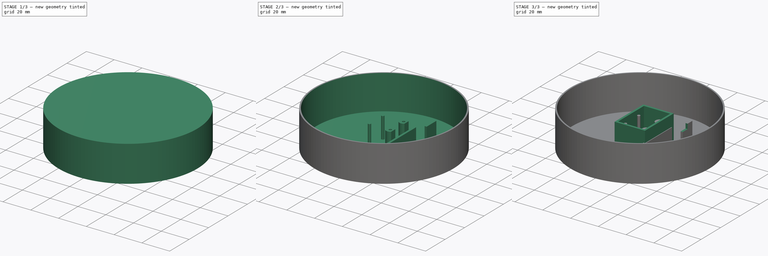
[diagram: build sequence overview — one tinted view per stage of 3, left to right]
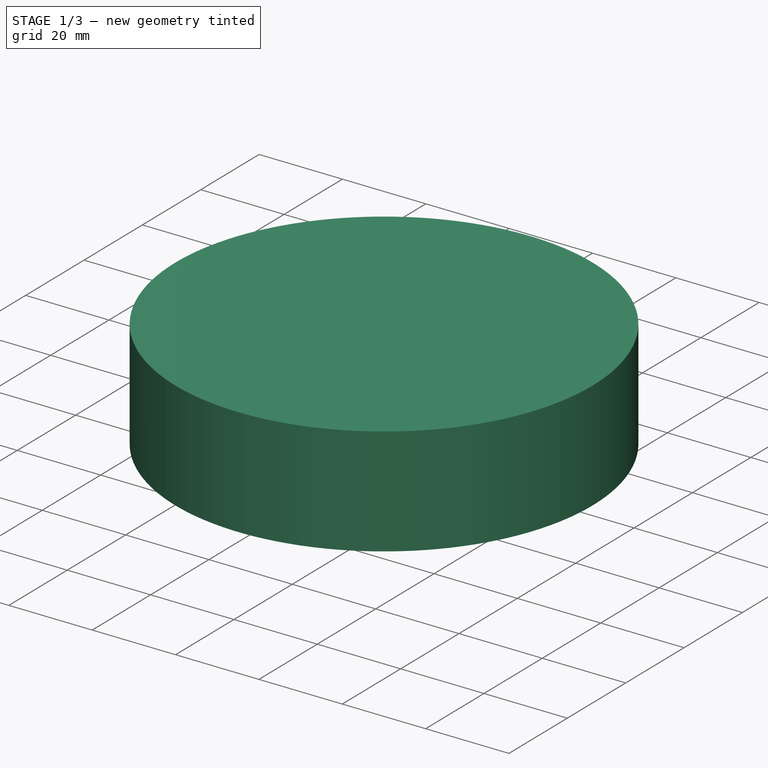
[diagram: stage 1 of 3 — iso view after this stage's code; geometry added in this stage tinted green]
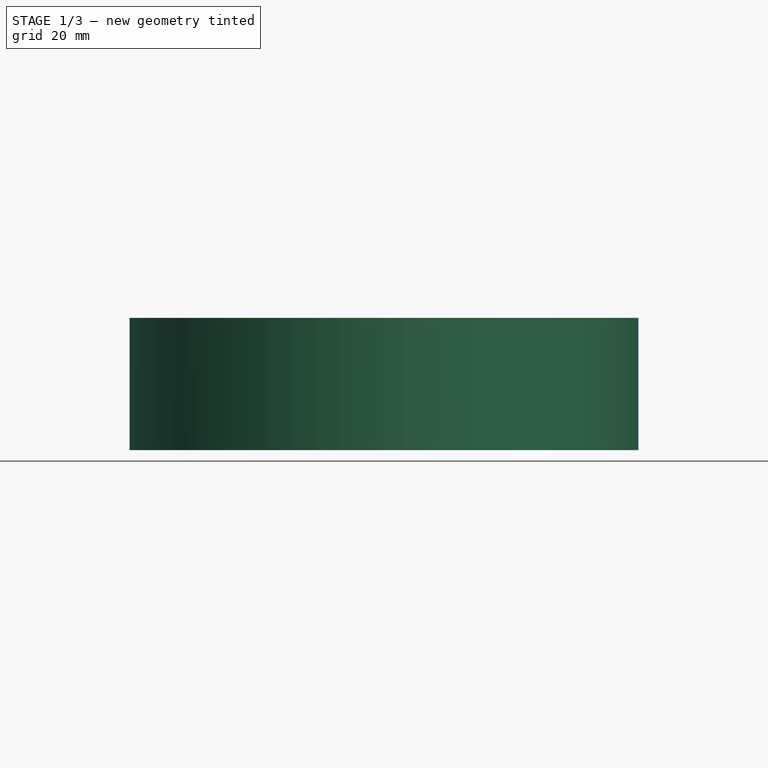
[diagram: stage 1 of 3 — front view after this stage's code; geometry added in this stage tinted green]
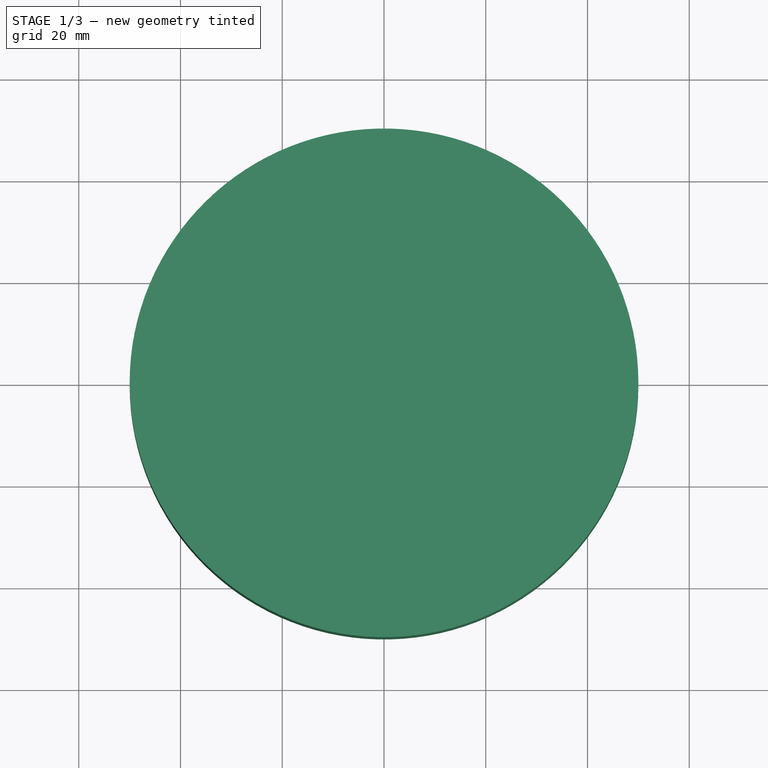
[diagram: stage 1 of 3 — top view after this stage's code; geometry added in this stage tinted green]
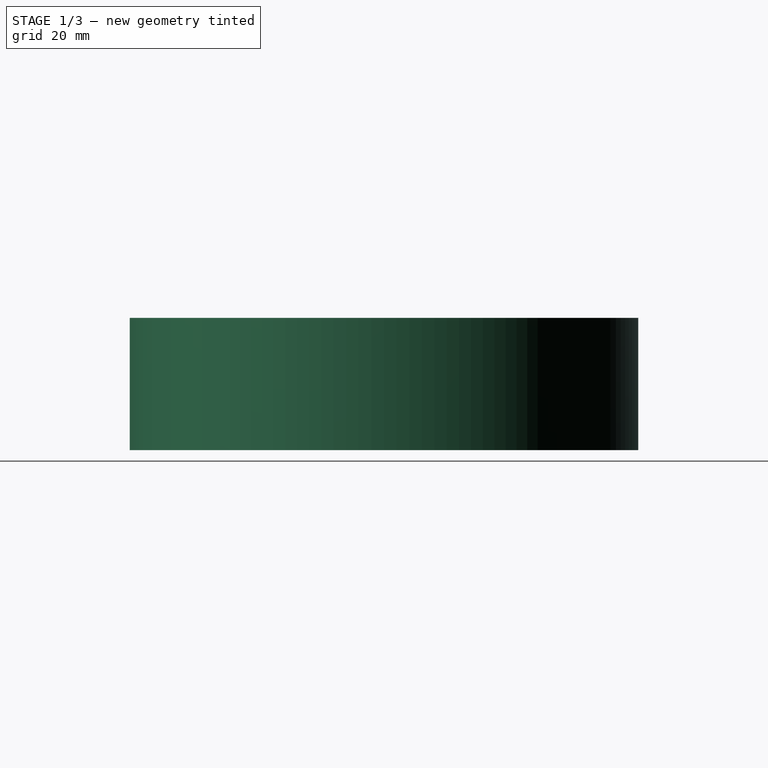
[diagram: stage 1 of 3 — right view after this stage's code; geometry added in this stage tinted green]
FCSTD DOCUMENT  (FreeCAD 0.19R24291 (Git))
Label: assembly
License: All rights reserved
LicenseURL: http://en.wikipedia.org/wiki/All_rights_reserved
objects: Sketcher::SketchObject×5, PartDesign::Pad×4, App::Link×4, PartDesign::CoordinateSystem×2, App::DocumentObjectGroup×2, App::Part×2, App::FeaturePython×1, PartDesign::AdditiveCylinder×1, PartDesign::SubtractiveCylinder×1, PartDesign::Plane×1, PartDesign::Pocket×1, PartDesign::Body×1
note: 23 computed .brp shape members not serialized (recipe doc carries the construction recipe); baked Part::Feature solids carry a one-line shape summary decoded from their .brp
EXTERNAL_REF file=rotary-encoder-ky-040.FCStd obj=LCS_0
EXTERNAL_REF file=rotary-encoder-ky-040.FCStd obj=rotary_encoder_ky_040
EXTERNAL_REF file=esp32-devkitc-v4.FCStd obj=LCS_0
EXTERNAL_REF file=esp32-devkitc-v4.FCStd obj=esp32_devkitc_v4_part
EXTERNAL_REF file=battery-charger-assembly.FCStd obj=LCS_Origin
EXTERNAL_REF file=battery-charger-assembly.FCStd obj=Model

FEATURE [PartDesign::CoordinateSystem] LCS_Origin
  AttacherType = Attacher::AttachEngine3D
  MapMode = 2
  Support = -> [X_Axis]
FEATURE [App::DocumentObjectGroup] Constraints
FEATURE [App::FeaturePython] Variables  # WARN: FeaturePython — macro-defined, semantics opaque (R4)
FEATURE [PartDesign::CoordinateSystem] LCS_0
  AttacherType = Attacher::AttachEngine3D
  MapMode = 2
  Support = -> [X_Axis001]
FEATURE [Sketcher::SketchObject] Sketch  label="sk_base"
  FullyConstrained = true
  MapMode = 5
  Support = -> [XY_Plane002]
  sketch-geometry (1):
    g0: Circle CenterX=0 CenterY=0 CenterZ=0 NormalX=0 NormalY=0 NormalZ=1 AngleXU=0 Radius=50
  constraints (2):
    c: Coincident(g0,g-1)
    c: Diameter(g0) = 100  'diameter'
FEATURE [PartDesign::Pad] Pad  label="pad_base"
  Direction = (1,1,1)
  Length = 1
  Length2 = 100
  Profile = -> Sketch
  Reversed = true
  Type = 0
FEATURE [App::Link] case_1_part001
  AssemblyType = Asm4EE
  AttachedBy = #LCS_0
  AttachedTo = Parent Assembly#LCS_Origin
  LinkedObject = -> case_1_part
  expr: Placement = LCS_Origin.Placement * AttachmentOffset * LCS_0.Placement ^ -1
FEATURE [App::Link] Unnamed1_rotary_encoder_ky_040_part  label="rotary_encoder"
  AssemblyType = Asm4EE
  AttachedBy = #LCS_0
  AttachedTo = case_1_part001#LCS_0
  AttachmentOffset = pos=(0,0,21) rot=(0,0,1;0rad)
  LinkPlacement = pos=(0,0,21) rot=(0,0,1;0rad)
  LinkedObject = -> <external rotary-encoder-ky-040.FCStd>#rotary_encoder_ky_040
  Placement = pos=(0,0,21) rot=(0,0,1;0rad)
  expr: Placement = case_1_part001.Placement * LCS_0.Placement * AttachmentOffset * rotary_encoder_ky_040#LCS_0.Placement ^ -1
FEATURE [App::Link] Unnamed_esp32_devkitc_v4_part  label="esp32"
  AssemblyType = Asm4EE
  AttachedBy = #LCS_0
  AttachedTo = case_1_part001#LCS_0
  AttachmentOffset = pos=(14,23,4) rot=(0,0,1;0rad)
  LinkPlacement = pos=(14,23,4) rot=(0,0,1;0rad)
  LinkedObject = -> <external esp32-devkitc-v4.FCStd>#esp32_devkitc_v4_part
  Placement = pos=(14,23,4) rot=(0,0,1;0rad)
  expr: Placement = case_1_part001.Placement * LCS_0.Placement * AttachmentOffset * esp32_devkitc_v4#LCS_0.Placement ^ -1
FEATURE [PartDesign::AdditiveCylinder] Cylinder  label="wall_add_cylinder"
  Angle = 360
  AttacherType = Attacher::AttachEngine3D
  BaseFeature = -> Pad
  Height = 25
  MapMode = 5
  Radius = 50
  Support = -> [XY_Plane002]
  expr: Radius = <<sk_base>>.Constraints.diameter / 2
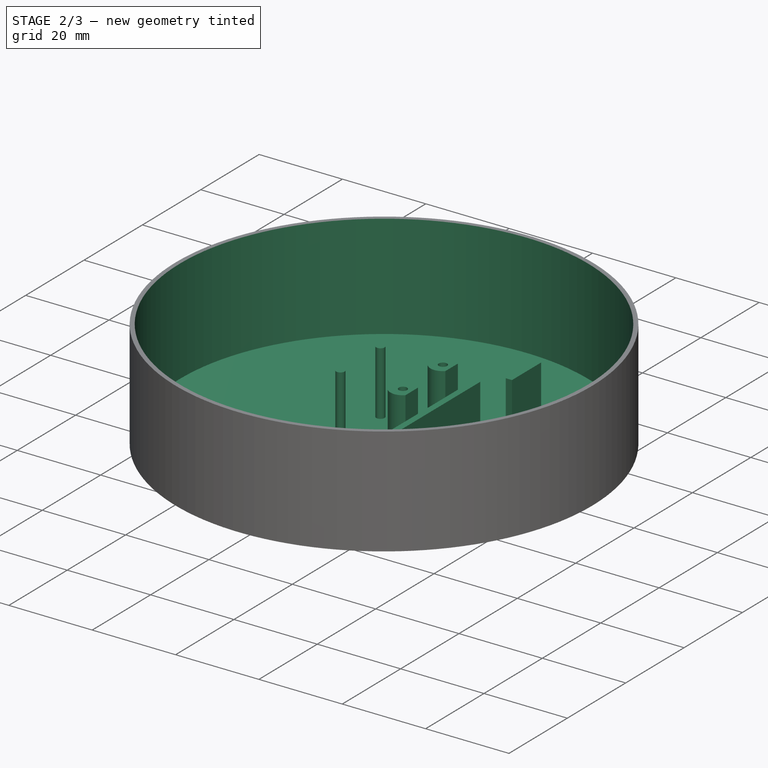
[diagram: stage 2 of 3 — iso view after this stage's code; geometry added in this stage tinted green]
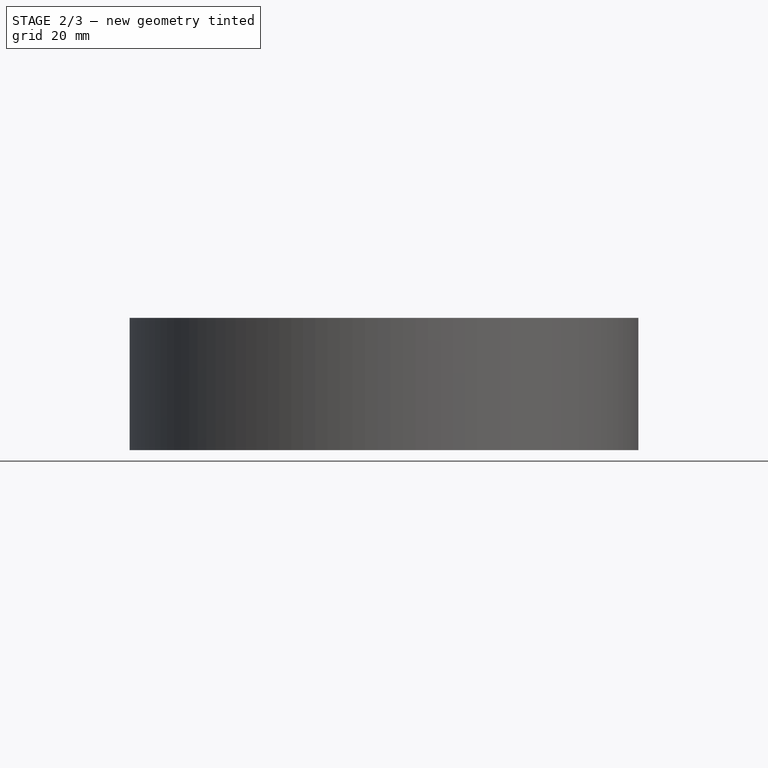
[diagram: stage 2 of 3 — front view after this stage's code; geometry added in this stage tinted green]
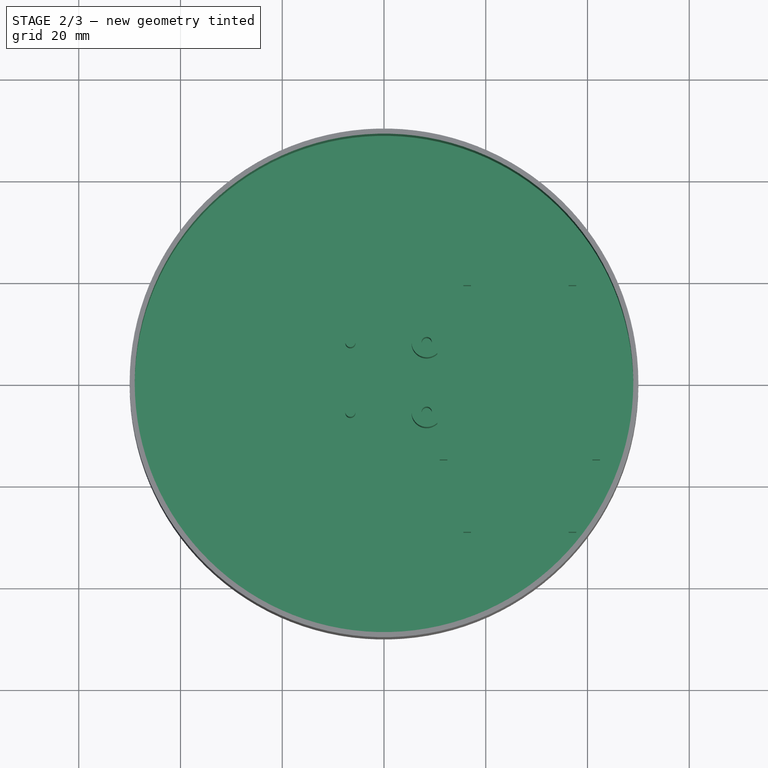
[diagram: stage 2 of 3 — top view after this stage's code; geometry added in this stage tinted green]
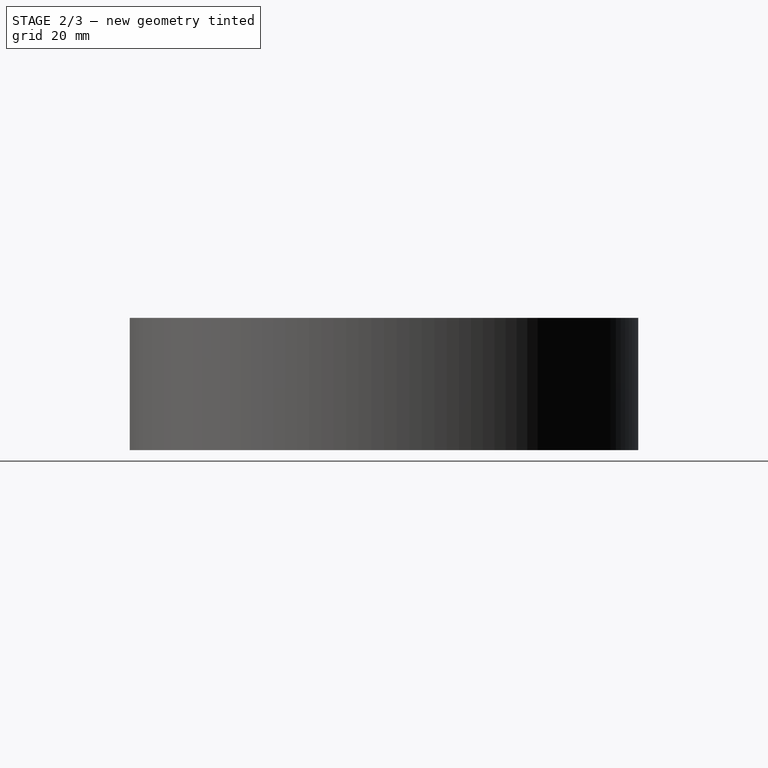
[diagram: stage 2 of 3 — right view after this stage's code; geometry added in this stage tinted green]
FEATURE [PartDesign::SubtractiveCylinder] Cylinder001  label="wall_sub_cylinder"
  Angle = 360
  AttacherType = Attacher::AttachEngine3D
  BaseFeature = -> Cylinder
  Height = 25
  MapMode = 5
  Radius = 49
  Support = -> [XY_Plane002]
  expr: Radius = <<sk_base>>.Constraints.diameter / 2 - <<pad_base>>.Length
  expr: Height = <<wall_add_cylinder>>.Height
FEATURE [Sketcher::SketchObject] Sketch001  label="sk_board_holder_rot_enc"
  FullyConstrained = true
  MapMode = 5
  Support = -> [XY_Plane002]
  expr: Constraints[17] = <<sk_rot_encoder_housing>>.Constraints.x_right_wall_offset
  expr: Constraints[9] = .Constraints.hole_diameter + 2mm * 2
  sketch-geometry (9):
    g0: Circle CenterX=8.4 CenterY=8.2 CenterZ=0 NormalX=0 NormalY=0 NormalZ=1 AngleXU=0 Radius=1
    g1: Circle CenterX=8.4 CenterY=-5.5 CenterZ=0 NormalX=0 NormalY=0 NormalZ=1 AngleXU=0 Radius=1
    g2: ArcOfCircle CenterX=8.4 CenterY=8.2 CenterZ=0 NormalX=0 NormalY=0 NormalZ=1 AngleXU=0 Radius=3 StartAngle=0.795399 EndAngle=5.48779
    g3: ArcOfCircle CenterX=8.4 CenterY=-5.5 CenterZ=0 NormalX=0 NormalY=0 NormalZ=1 AngleXU=0 Radius=3 StartAngle=0.795399 EndAngle=5.48779
    g4: Circle CenterX=-6.6 CenterY=8.2 CenterZ=0 NormalX=0 NormalY=0 NormalZ=1 AngleXU=0 Radius=1
    g5: Circle CenterX=-6.6 CenterY=-5.5 CenterZ=0 NormalX=0 NormalY=0 NormalZ=1 AngleXU=0 Radius=1
    g6: LineSegment StartX=10.5 StartY=12.5 StartZ=0 EndX=10.5 EndY=-12.5 EndZ=0
    g7: LineSegment StartX=10.5 StartY=10.3424 StartZ=0 EndX=10.5 EndY=6.05757 EndZ=0
    g8: LineSegment StartX=10.5 StartY=-3.35757 StartZ=0 EndX=10.5 EndY=-7.64243 EndZ=0
  constraints (31):
    c: Equal(g0,g1)
    c: Vertical(g1,g0)
    c: Diameter(g0) = 2  'hole_diameter'
    c: Coincident(g2,g0)
    c: Coincident(g3,g1)
    c: DistanceY(g-1,g0) = 8.2
    c: DistanceX(g-1,g0) = 8.4
    c: DistanceY(g1,g-1) = 5.5
    c: Equal(g3,g2)
    c: Diameter(g2) = 6
    c: Vertical(g5,g4)
    c: Horizontal(g4,g0)
    c: Horizontal(g5,g1)
    c: DistanceX(g4,g0) = 15
    c: Diameter(g5) = 2
    c: Equal(g5,g4)
    c: Distance(g6) = 25
    c: DistanceX(g-1,g6) = 10.5
    c: Symmetric(g6,g6,g-1)
    c: Vertical(g7)
    c: PointOnObject(g8,g6)
    c: PointOnObject(g8,g3)
    c: PointOnObject(g8,g6)
    c: PointOnObject(g8,g3)
    c: PointOnObject(g7,g6)
    c: PointOnObject(g7,g2)
    c: PointOnObject(g7,g2)
    c: PointOnObject(g2,g6)
    c: PointOnObject(g2,g6)
    c: PointOnObject(g3,g6)
    c: PointOnObject(g3,g6)
FEATURE [PartDesign::Pad] Pad001  label="pad_board_holder_rot_enc"
  BaseFeature = -> Cylinder001
  Direction = (1,1,1)
  Length = 15.3
  Length2 = 100
  Profile = -> Sketch001
  Type = 0
FEATURE [Sketcher::SketchObject] Sketch002  label="sk_board_holder_esp"
  FullyConstrained = true
  MapMode = 5
  Support = -> [XY_Plane002]
  sketch-geometry (27):
    g0: LineSegment StartX=15.6 StartY=29.4433 StartZ=0 EndX=17.1 EndY=29.4433 EndZ=0
    g1: LineSegment StartX=17.1 StartY=29.4433 StartZ=0 EndX=17.1 EndY=19.4433 EndZ=0
    g2: LineSegment StartX=17.1 StartY=19.4433 StartZ=0 EndX=15.6 EndY=19.4433 EndZ=0
    g3: LineSegment StartX=15.6 StartY=19.4433 StartZ=0 EndX=15.6 EndY=29.4433 EndZ=0
    g4: LineSegment StartX=36.3 StartY=29.4433 StartZ=0 EndX=37.8 EndY=29.4433 EndZ=0
    g5: LineSegment StartX=37.8 StartY=29.4433 StartZ=0 EndX=37.8 EndY=19.4433 EndZ=0
    g6: LineSegment StartX=37.8 StartY=19.4433 StartZ=0 EndX=36.3 EndY=19.4433 EndZ=0
    g7: LineSegment StartX=36.3 StartY=19.4433 StartZ=0 EndX=36.3 EndY=29.4433 EndZ=0
    g8: LineSegment StartX=15.6 StartY=-19.0433 StartZ=0 EndX=17.1 EndY=-19.0433 EndZ=0
    g9: LineSegment StartX=17.1 StartY=-19.0433 StartZ=0 EndX=17.1 EndY=-29.0433 EndZ=0
    g10: LineSegment StartX=17.1 StartY=-29.0433 StartZ=0 EndX=15.6 EndY=-29.0433 EndZ=0
    g11: LineSegment StartX=15.6 StartY=-29.0433 StartZ=0 EndX=15.6 EndY=-19.0433 EndZ=0
    g12: LineSegment StartX=36.3 StartY=-19.0433 StartZ=0 EndX=37.8 EndY=-19.0433 EndZ=0
    g13: LineSegment StartX=37.8 StartY=-19.0433 StartZ=0 EndX=37.8 EndY=-29.0433 EndZ=0
    g14: LineSegment StartX=37.8 StartY=-29.0433 StartZ=0 EndX=36.3 EndY=-29.0433 EndZ=0
    g15: LineSegment StartX=36.3 StartY=-29.0433 StartZ=0 EndX=36.3 EndY=-19.0433 EndZ=0
    g16: LineSegment StartX=26.7 StartY=33 StartZ=0 EndX=26.7 EndY=-32 EndZ=0
    g17: LineSegment StartX=0 StartY=0.2 StartZ=0 EndX=50 EndY=0.2 EndZ=0
    g18: LineSegment StartX=11.4882 StartY=-24.0433 StartZ=0 EndX=20.8154 EndY=-24.0433 EndZ=0
    g19: LineSegment StartX=40.95 StartY=15.2 StartZ=0 EndX=42.45 EndY=15.2 EndZ=0
    g20: LineSegment StartX=42.45 StartY=15.2 StartZ=0 EndX=42.45 EndY=-14.8 EndZ=0
    g21: LineSegment StartX=42.45 StartY=-14.8 StartZ=0 EndX=40.95 EndY=-14.8 EndZ=0
    g22: LineSegment StartX=40.95 StartY=-14.8 StartZ=0 EndX=40.95 EndY=15.2 EndZ=0
    g23: LineSegment StartX=10.95 StartY=15.2 StartZ=0 EndX=12.45 EndY=15.2 EndZ=0
    g24: LineSegment StartX=12.45 StartY=15.2 StartZ=0 EndX=12.45 EndY=-14.8 EndZ=0
    g25: LineSegment StartX=12.45 StartY=-14.8 StartZ=0 EndX=10.95 EndY=-14.8 EndZ=0
    g26: LineSegment StartX=10.95 StartY=-14.8 StartZ=0 EndX=10.95 EndY=15.2 EndZ=0
  constraints (77):
    c: Coincident(g0,g1)
    c: Coincident(g1,g2)
    c: Coincident(g2,g3)
    c: Coincident(g3,g0)
    c: Horizontal(g0)
    c: Horizontal(g2)
    c: Vertical(g1)
    c: Vertical(g3)
    c: Coincident(g4,g5)
    c: Coincident(g5,g6)
    c: Coincident(g6,g7)
    c: Coincident(g7,g4)
    c: Horizontal(g4)
    c: Horizontal(g6)
    c: Vertical(g5)
    c: Vertical(g7)
    c: Coincident(g8,g9)
    c: Coincident(g9,g10)
    c: Coincident(g10,g11)
    c: Coincident(g11,g8)
    c: Horizontal(g8)
    c: Horizontal(g10)
    c: Vertical(g9)
    c: Vertical(g11)
    c: Coincident(g12,g13)
    c: Coincident(g13,g14)
    c: Coincident(g14,g15)
    c: Coincident(g15,g12)
    c: Horizontal(g12)
    c: Horizontal(g14)
    c: Vertical(g13)
    c: Vertical(g15)
    c: Vertical(g16)
    c: Horizontal(g17)
    c: Symmetric(g1,g6,g16)
    c: Equal(g2,g8)
    c: Equal(g8,g12)
    c: Equal(g12,g6)
    c: Equal(g5,g1)
    c: Equal(g1,g9)
    c: Equal(g9,g13)
    c: Symmetric(g8,g12,g16)
    c: Symmetric(g6,g12,g17)
    c: PointOnObject(g17,g-2)
    c: DistanceY(g-1,g17) = 0.2
    c: Distance(g17) = 50
    c: Distance(g16) = 65
    c: DistanceX(g-1,g16) = 26.7
    c: Distance(g0) = 1.5
    c: Distance(g3) = 10
    c: DistanceX(g-1,g0) = 15.6
    c: DistanceY(g16,g-1) = 32
    c: Horizontal(g18)
    c: Block(g18)
    c: DistanceY(g18,g8) = 5
    c: Coincident(g19,g20)
    c: Coincident(g20,g21)
    c: Coincident(g21,g22)
    c: Coincident(g22,g19)
    c: Horizontal(g19)
    c: Horizontal(g21)
    c: Vertical(g20)
    c: Vertical(g22)
    c: Coincident(g23,g24)
    c: Coincident(g24,g25)
    c: Coincident(g25,g26)
    c: Coincident(g26,g23)
    c: Horizontal(g23)
    c: Horizontal(g25)
    c: Vertical(g24)
    c: Symmetric(g23,g19,g16)
    c: Equal(g19,g23)
    c: Equal(g23,g14)
    c: Equal(g20,g26)
    c: Symmetric(g25,g23,g17)
    c: Distance(g26) = 30
    c: DistanceX(g23,g19) = 28.5
FEATURE [PartDesign::Pad] Pad002  label="pad_board_holder_esp"
  BaseFeature = -> Pad001
  Direction = (1,1,1)
  Length = 10
  Length2 = 100
  Profile = -> Sketch002
  Type = 0
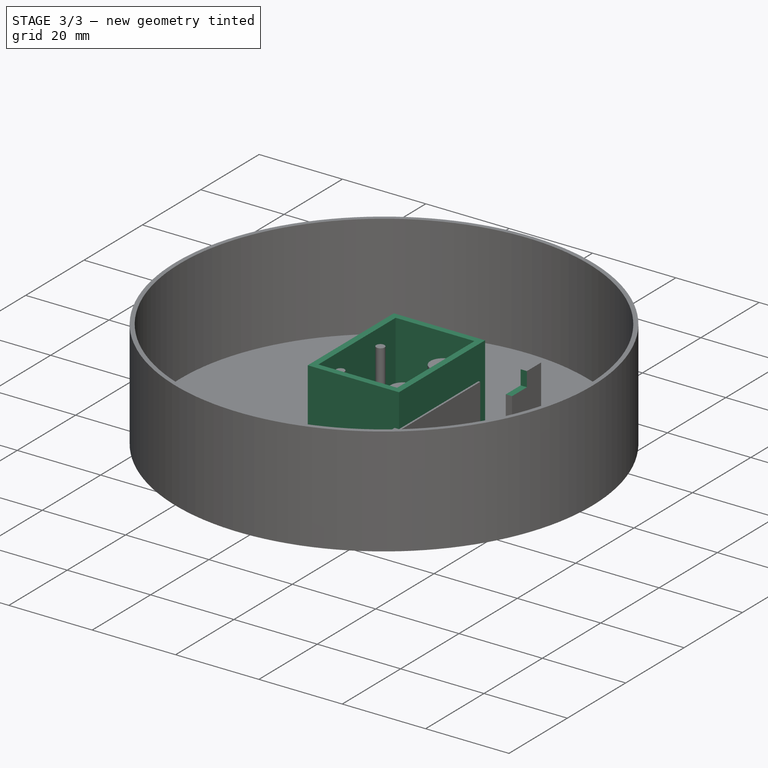
[diagram: stage 3 of 3 — iso view after this stage's code; geometry added in this stage tinted green]
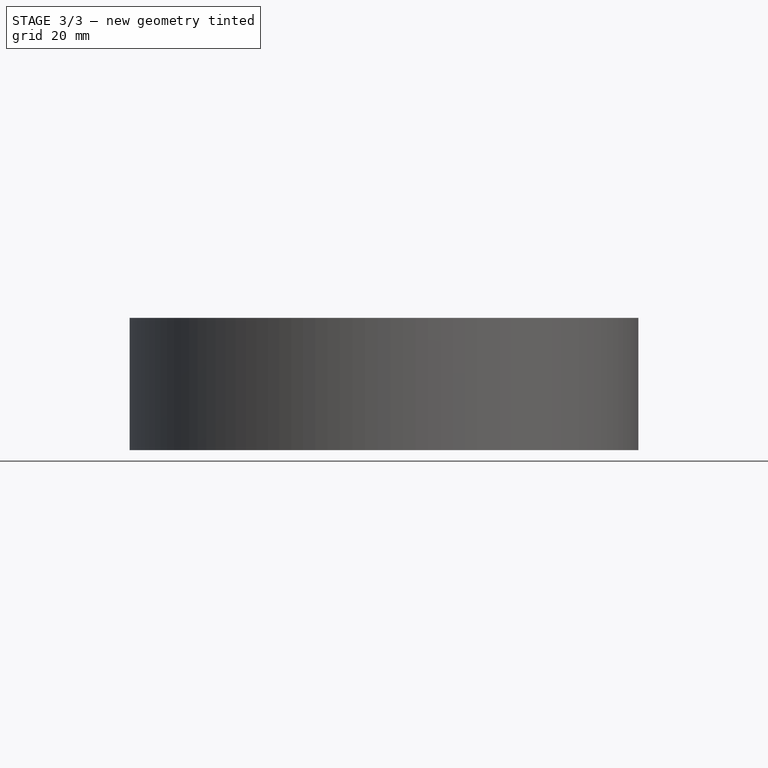
[diagram: stage 3 of 3 — front view after this stage's code; geometry added in this stage tinted green]
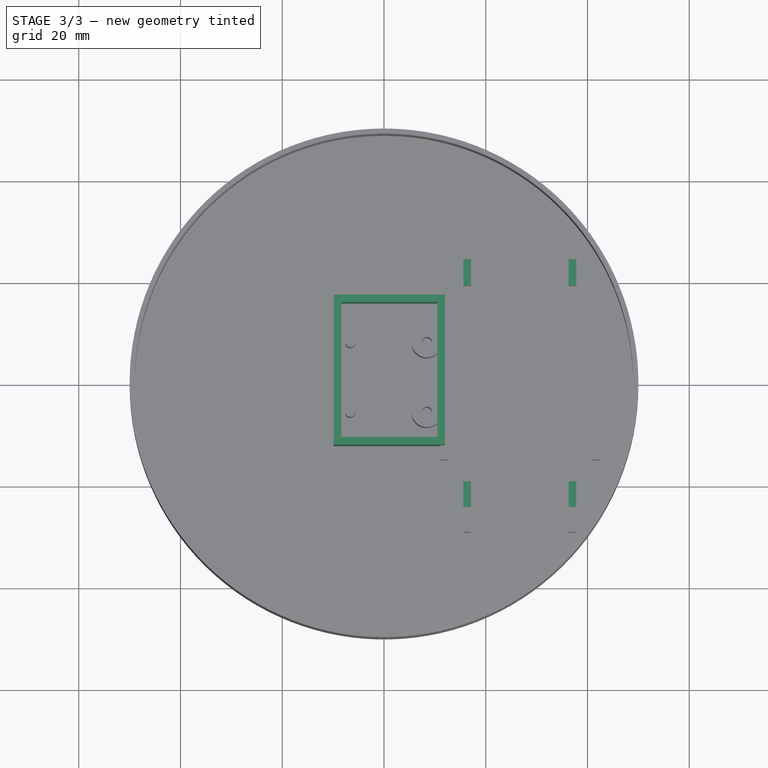
[diagram: stage 3 of 3 — top view after this stage's code; geometry added in this stage tinted green]
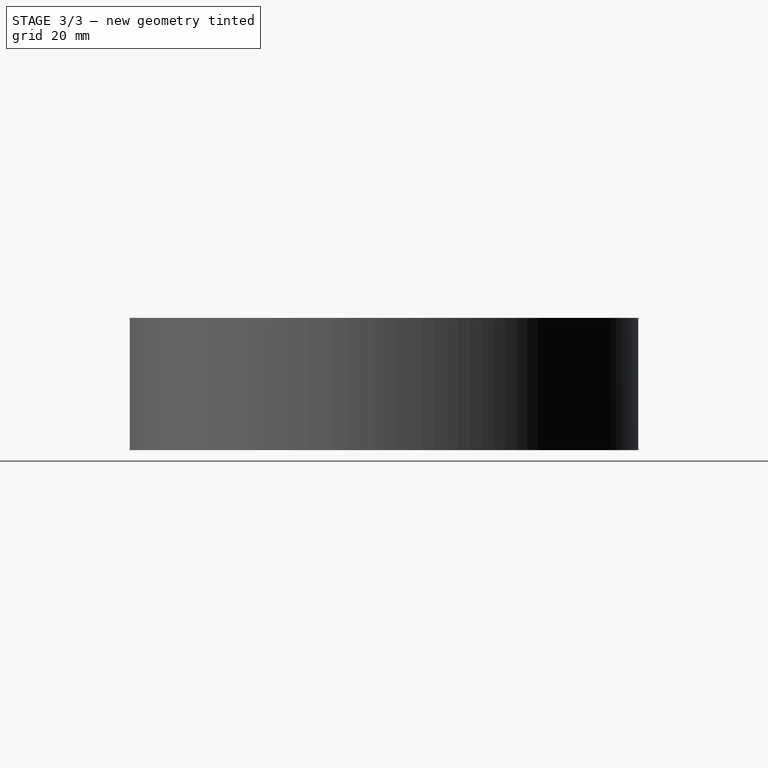
[diagram: stage 3 of 3 — right view after this stage's code; geometry added in this stage tinted green]
FEATURE [PartDesign::Plane] DatumPlane  label="dp_board_holder_esp_pocket"
  AttachmentOffset = pos=(0,0,6.5) rot=(0,0,1;0rad)
  Length = 119.793
  MapMode = 5
  Placement = pos=(0,0,6.5) rot=(0,0,1;0rad)
  ResizeMode = 0
  Support = -> [XY_Plane002]
  Width = 119.883
FEATURE [Sketcher::SketchObject] Sketch003  label="sk_board_holder_esp_pcoket"
  ExternalGeometry = -> [Sketch002]
  FullyConstrained = true
  MapMode = 5
  Placement = pos=(0,0,6.5) rot=(0,0,1;0rad)
  Support = -> [DatumPlane]
  sketch-geometry (16):
    g0: LineSegment StartX=15.6 StartY=-19.0433 StartZ=0 EndX=17.1 EndY=-19.0433 EndZ=0
    g1: LineSegment StartX=17.1 StartY=-19.0433 StartZ=0 EndX=17.1 EndY=-24.1433 EndZ=0
    g2: LineSegment StartX=17.1 StartY=-24.1433 StartZ=0 EndX=15.6 EndY=-24.1433 EndZ=0
    g3: LineSegment StartX=15.6 StartY=-24.1433 StartZ=0 EndX=15.6 EndY=-19.0433 EndZ=0
    g4: LineSegment StartX=36.3 StartY=-19.0433 StartZ=0 EndX=37.8 EndY=-19.0433 EndZ=0
    g5: LineSegment StartX=37.8 StartY=-19.0433 StartZ=0 EndX=37.8 EndY=-24.1433 EndZ=0
    g6: LineSegment StartX=37.8 StartY=-24.1433 StartZ=0 EndX=36.3 EndY=-24.1433 EndZ=0
    g7: LineSegment StartX=36.3 StartY=-24.1433 StartZ=0 EndX=36.3 EndY=-19.0433 EndZ=0
    g8: LineSegment StartX=15.6 StartY=19.4433 StartZ=0 EndX=17.1 EndY=19.4433 EndZ=0
    g9: LineSegment StartX=17.1 StartY=19.4433 StartZ=0 EndX=17.1 EndY=24.5433 EndZ=0
    g10: LineSegment StartX=17.1 StartY=24.5433 StartZ=0 EndX=15.6 EndY=24.5433 EndZ=0
    g11: LineSegment StartX=15.6 StartY=24.5433 StartZ=0 EndX=15.6 EndY=19.4433 EndZ=0
    g12: LineSegment StartX=36.3 StartY=19.4433 StartZ=0 EndX=37.8 EndY=19.4433 EndZ=0
    g13: LineSegment StartX=37.8 StartY=19.4433 StartZ=0 EndX=37.8 EndY=24.5433 EndZ=0
    g14: LineSegment StartX=37.8 StartY=24.5433 StartZ=0 EndX=36.3 EndY=24.5433 EndZ=0
    g15: LineSegment StartX=36.3 StartY=24.5433 StartZ=0 EndX=36.3 EndY=19.4433 EndZ=0
  constraints (40):
    c: Coincident(g0,g1)
    c: Coincident(g1,g2)
    c: Coincident(g2,g3)
    c: Coincident(g3,g0)
    c: Horizontal(g2)
    c: Vertical(g1)
    c: Vertical(g3)
    c: Coincident(g0,g-3)
    c: Coincident(g4,g5)
    c: Coincident(g5,g6)
    c: Coincident(g6,g7)
    c: Coincident(g7,g4)
    c: Horizontal(g6)
    c: Vertical(g5)
    c: Vertical(g7)
    c: Coincident(g4,g-4)
    c: Coincident(g4,g-4)
    c: Coincident(g0,g-3)
    c: Equal(g7,g3)
    c: Coincident(g8,g9)
    c: Coincident(g9,g10)
    c: Coincident(g10,g11)
    c: Coincident(g11,g8)
    c: Horizontal(g10)
    c: Vertical(g9)
    c: Vertical(g11)
    c: Coincident(g12,g13)
    c: Coincident(g13,g14)
    c: Coincident(g14,g15)
    c: Coincident(g15,g12)
    c: Horizontal(g14)
    c: Vertical(g13)
    c: Vertical(g15)
    c: Coincident(g8,g-5)
    c: Coincident(g8,g-5)
    c: Coincident(g12,g-6)
    c: Coincident(g12,g-6)
    c: Equal(g9,g15)
    c: Equal(g15,g7)
    c: Distance(g15) = 5.1
FEATURE [PartDesign::Pocket] Pocket  label="pocket_board_holder_esp"
  BaseFeature = -> Pad002
  Length = 5
  Length2 = 100
  Profile = -> Sketch003
  Reversed = true
  Type = 1
FEATURE [App::Link] battery_charger
  AssemblyType = Asm4EE
  AttachedBy = #LCS_Origin
  AttachedTo = case_1_part001#LCS_0
  AttachmentOffset = pos=(-24,0,10.5) rot=(0,-1,0;0.785398rad)
  LinkPlacement = pos=(-24,0,10.5) rot=(0,-1,0;0.785398rad)
  LinkedObject = -> <external battery-charger-assembly.FCStd>#Model
  Placement = pos=(-24,0,10.5) rot=(0,-1,0;0.785398rad)
  expr: Placement = case_1_part001.Placement * LCS_0.Placement * AttachmentOffset * battery_charger_assembly#LCS_Origin.Placement ^ -1
FEATURE [App::Part] Model  label="assembly"
  Configuration = 0
  Group = -> [LCS_Origin,Constraints,Variables,case_1_part001,Unnamed1_rotary_encoder_ky_040_part,Unnamed_esp32_devkitc_v4_part,battery_charger]
  Origin = -> Origin
  Type = Assembly4 Model
FEATURE [Sketcher::SketchObject] Sketch004  label="sk_rot_encoder_housing"
  FullyConstrained = true
  MapMode = 5
  Support = -> [XY_Plane002]
  expr: Constraints[19] = .Constraints.thickness
  expr: Constraints[18] = .Constraints.thickness
  expr: Constraints[15] = .Constraints.thickness
  sketch-geometry (8):
    g0: LineSegment StartX=-8.4 StartY=16 StartZ=0 EndX=10.5 EndY=16 EndZ=0
    g1: LineSegment StartX=10.5 StartY=16 StartZ=0 EndX=10.5 EndY=-10.5 EndZ=0
    g2: LineSegment StartX=10.5 StartY=-10.5 StartZ=0 EndX=-8.4 EndY=-10.5 EndZ=0
    g3: LineSegment StartX=-8.4 StartY=-10.5 StartZ=0 EndX=-8.4 EndY=16 EndZ=0
    g4: LineSegment StartX=-9.9 StartY=17.5 StartZ=0 EndX=12 EndY=17.5 EndZ=0
    g5: LineSegment StartX=12 StartY=17.5 StartZ=0 EndX=12 EndY=-12 EndZ=0
    g6: LineSegment StartX=12 StartY=-12 StartZ=0 EndX=-9.9 EndY=-12 EndZ=0
    g7: LineSegment StartX=-9.9 StartY=-12 StartZ=0 EndX=-9.9 EndY=17.5 EndZ=0
  constraints (24):
    c: Coincident(g0,g1)
    c: Coincident(g1,g2)
    c: Coincident(g2,g3)
    c: Coincident(g3,g0)
    c: Horizontal(g2)
    c: Vertical(g1)
    c: Vertical(g3)
    c: Coincident(g4,g5)
    c: Coincident(g5,g6)
    c: Coincident(g6,g7)
    c: Coincident(g7,g4)
    c: Horizontal(g6)
    c: Vertical(g5)
    c: Vertical(g7)
    c: DistanceX(g1,g5) = 1.5  'thickness'
    c: DistanceY(g0,g4) = 1.5
    c: Horizontal(g0)
    c: Horizontal(g4)
    c: DistanceX(g4,g0) = 1.5
    c: DistanceY(g6,g2) = 1.5
    c: DistanceX(g-1,g0) = 10.5  'x_right_wall_offset'
    c: DistanceY(g-1,g0) = 16
    c: DistanceY(g1,g-1) = 10.5
    c: DistanceX(g0,g-1) = 8.4
FEATURE [PartDesign::Pad] Pad003  label="pad_rot_enc_housing"
  BaseFeature = -> Pocket
  Direction = (1,1,1)
  Length = 18
  Length2 = 100
  Profile = -> Sketch004
  Type = 0
FEATURE [PartDesign::Body] Body  label="case_1_body"
  Group = -> [Sketch,Pad,Cylinder,Cylinder001,Sketch001,Pad001,Sketch002,Pad002,DatumPlane,Sketch003,Pocket,Sketch004,Pad003]
  Origin = -> Origin002
  Tip = -> Pad003
FEATURE [App::Part] case_1_part
  Group = -> [LCS_0,Body]
  Origin = -> Origin001
FEATURE [App::DocumentObjectGroup] Parts
  Group = -> [case_1_part]

RESOLVED EXTERNAL PARTS (link-assembly join: the EXTERNAL_REF files above that resolve inside this repo's crawl, each included once):
---- part battery-charger-assembly.FCStd = doc fcstd_cf2c462958cf ----
FCSTD DOCUMENT  (FreeCAD 0.19R24291 (Git))
Label: battery-charger-assembly
License: All rights reserved
LicenseURL: http://en.wikipedia.org/wiki/All_rights_reserved
objects: App::Link×5, App::DocumentObjectGroup×2, PartDesign::CoordinateSystem×1, App::FeaturePython×1, App::Part×1
note: 1 computed .brp shape members not serialized (recipe doc carries the construction recipe); baked Part::Feature solids carry a one-line shape summary decoded from their .brp
EXTERNAL_REF file=battery-charger.FCStd obj=LCS_0
EXTERNAL_REF file=battery-charger.FCStd obj=battery_charger_part
EXTERNAL_REF file=micro-usb-b-connector.FCStd obj=LCS_0
EXTERNAL_REF file=micro-usb-b-connector.FCStd obj=micro_usb_b_part
EXTERNAL_REF file=usb-a-connector.FCStd obj=LCS_0
EXTERNAL_REF file=usb-a-connector.FCStd obj=usb_a_connector_part
EXTERNAL_REF file=slide_switch.FCStd obj=LCS_0
EXTERNAL_REF file=slide_switch.FCStd obj=switch_part
EXTERNAL_REF file=16340-battery.FCStd obj=LCS_0
EXTERNAL_REF file=16340-battery.FCStd obj=_6340_battery_part

FEATURE [App::DocumentObjectGroup] Parts
FEATURE [PartDesign::CoordinateSystem] LCS_Origin
  AttacherType = Attacher::AttachEngine3D
  MapMode = 2
  Support = -> [X_Axis]
FEATURE [App::DocumentObjectGroup] Constraints
FEATURE [App::FeaturePython] Variables  # WARN: FeaturePython — macro-defined, semantics opaque (R4)
FEATURE [App::Link] Unnamed_battery_charger_pcb_part  label="pcb"
  AssemblyType = Asm4EE
  AttachedBy = #LCS_0
  AttachedTo = Parent Assembly#LCS_Origin
  LinkedObject = -> <external battery-charger.FCStd>#battery_charger_part
  expr: Placement = LCS_Origin.Placement * AttachmentOffset * Unnamed#LCS_0.Placement ^ -1
FEATURE [App::Link] micro_usb
  AssemblyType = Asm4EE
  AttachedBy = #LCS_0
  AttachedTo = Unnamed_battery_charger_pcb_part#LCS_0
  AttachmentOffset = pos=(0,-27,1) rot=(0,0,1;1.5708rad)
  LinkPlacement = pos=(0,-27,1) rot=(0,0,1;1.5708rad)
  LinkedObject = -> <external micro-usb-b-connector.FCStd>#micro_usb_b_part
  Placement = pos=(0,-27,1) rot=(0,0,1;1.5708rad)
  expr: Placement = Unnamed_battery_charger_pcb_part.Placement * Unnamed#LCS_0.Placement * AttachmentOffset * Unnamed1#LCS_0.Placement ^ -1
FEATURE [App::Link] usb_a
  AssemblyType = Asm4EE
  AttachedBy = #LCS_0
  AttachedTo = Unnamed_battery_charger_pcb_part#LCS_0
  AttachmentOffset = pos=(0,30,0) rot=(0,0,1;0rad)
  LinkPlacement = pos=(0,30,0) rot=(0,0,1;0rad)
  LinkedObject = -> <external usb-a-connector.FCStd>#usb_a_connector_part
  Placement = pos=(0,30,0) rot=(0,0,1;0rad)
  expr: Placement = Unnamed_battery_charger_pcb_part.Placement * Unnamed#LCS_0.Placement * AttachmentOffset * Unnamed3#LCS_0.Placement ^ -1
FEATURE [App::Link] on_off_switch
  AssemblyType = Asm4EE
  AttachedBy = #LCS_0
  AttachedTo = Unnamed_battery_charger_pcb_part#LCS_0
  AttachmentOffset = pos=(11,19.5,0) rot=(0,0,1;1.5708rad)
  LinkPlacement = pos=(11,19.5,0) rot=(0,0,1;1.5708rad)
  LinkedObject = -> <external slide_switch.FCStd>#switch_part
  Placement = pos=(11,19.5,0) rot=(0,0,1;1.5708rad)
  expr: Placement = Unnamed_battery_charger_pcb_part.Placement * Unnamed#LCS_0.Placement * AttachmentOffset * Unnamed4#LCS_0.Placement ^ -1
FEATURE [App::Link] battery
  AssemblyType = Asm4EE
  AttachedBy = #LCS_0
  AttachedTo = Unnamed_battery_charger_pcb_part#LCS_0
  AttachmentOffset = pos=(0,-22,10) rot=(1,0,0;4.71239rad)
  LinkPlacement = pos=(0,-22,10) rot=(1,0,0;4.71239rad)
  LinkedObject = -> <external 16340-battery.FCStd>#_6340_battery_part
  Placement = pos=(0,-22,10) rot=(1,0,0;4.71239rad)
  expr: Placement = Unnamed_battery_charger_pcb_part.Placement * Unnamed#LCS_0.Placement * AttachmentOffset * Unnamed5#LCS_0.Placement ^ -1
FEATURE [App::Part] Model  label="battery_charger_assembly"
  Configuration = 0
  Group = -> [LCS_Origin,Constraints,Variables,Unnamed_battery_charger_pcb_part,micro_usb,usb_a,on_off_switch,battery]
  Origin = -> Origin
  Type = Assembly4 Model
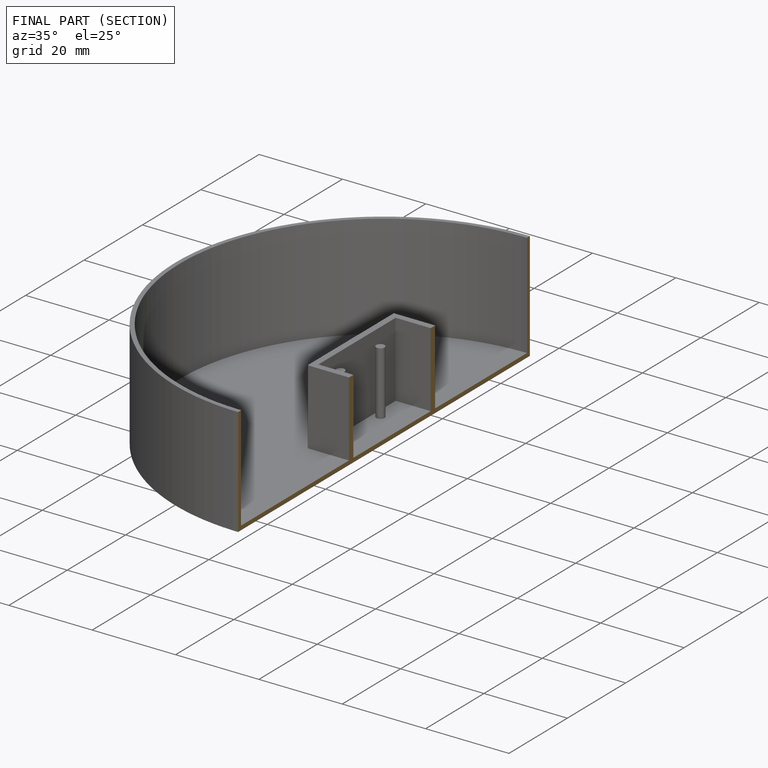
[diagram: finished part — half-section view (interior)]
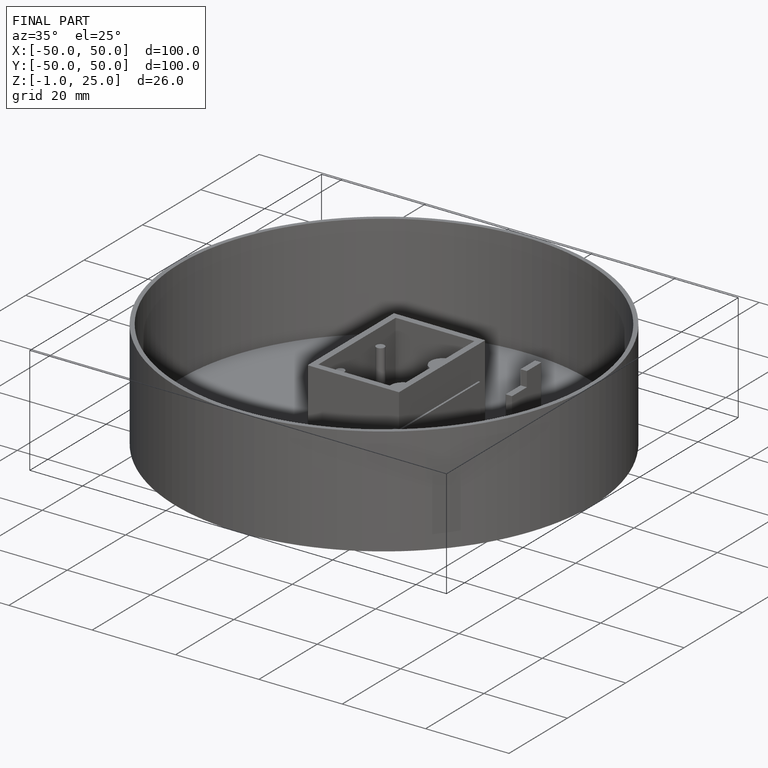
[diagram: finished part — iso view with bounding-box wireframe]
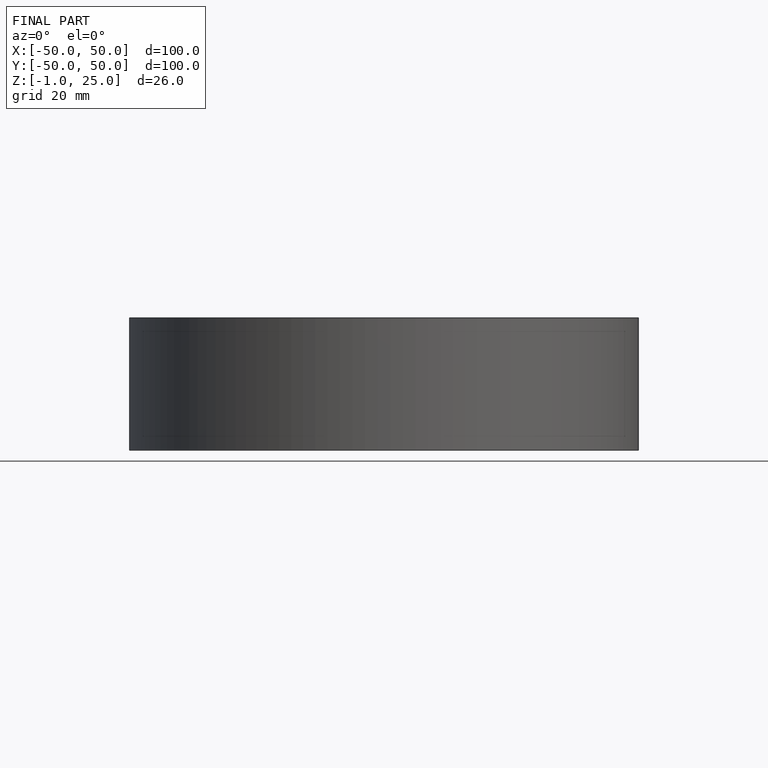
[diagram: finished part — front view with bounding-box wireframe]
